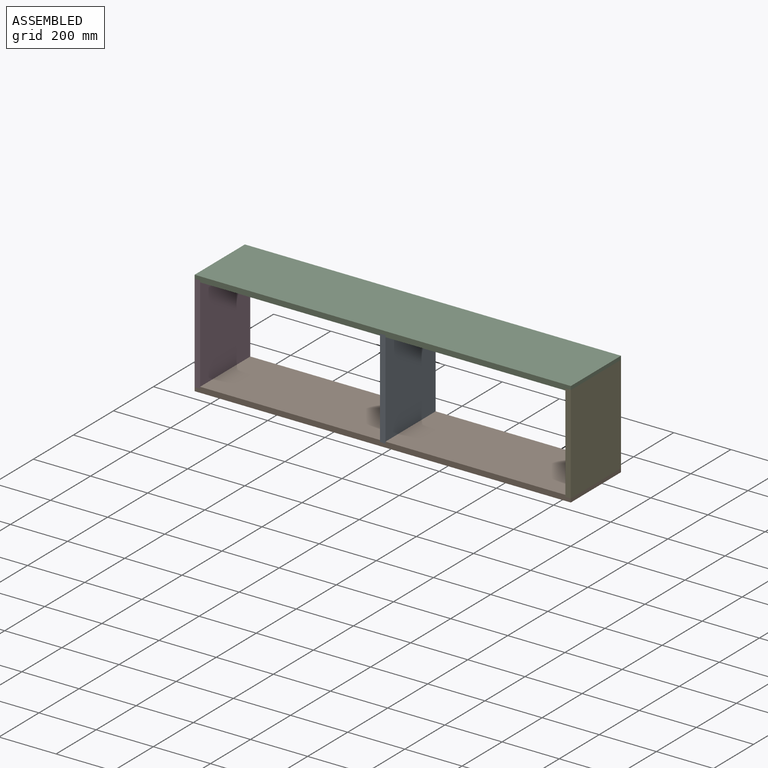
[diagram: assembled view]
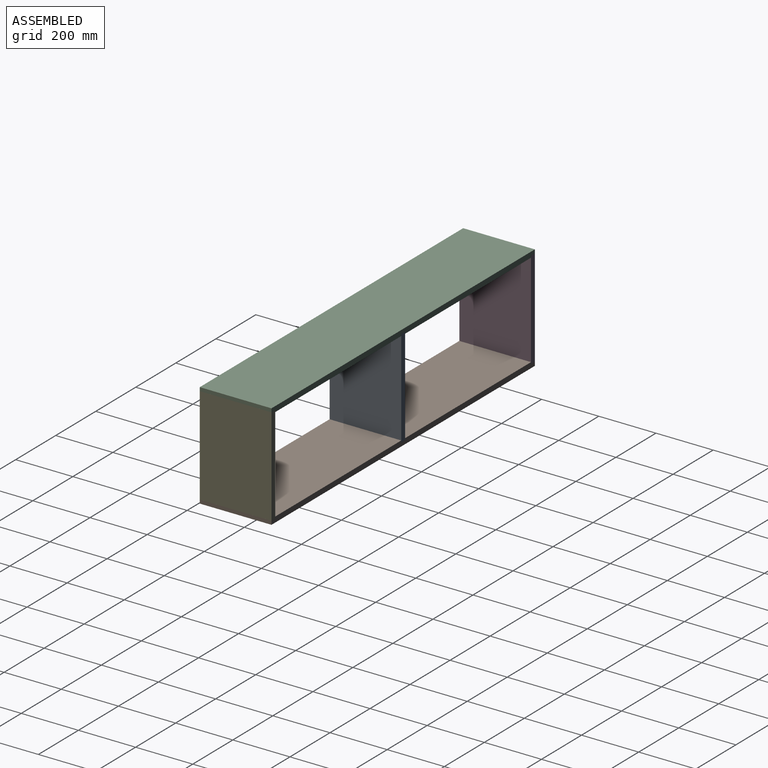
[diagram: assembled view, second angle]
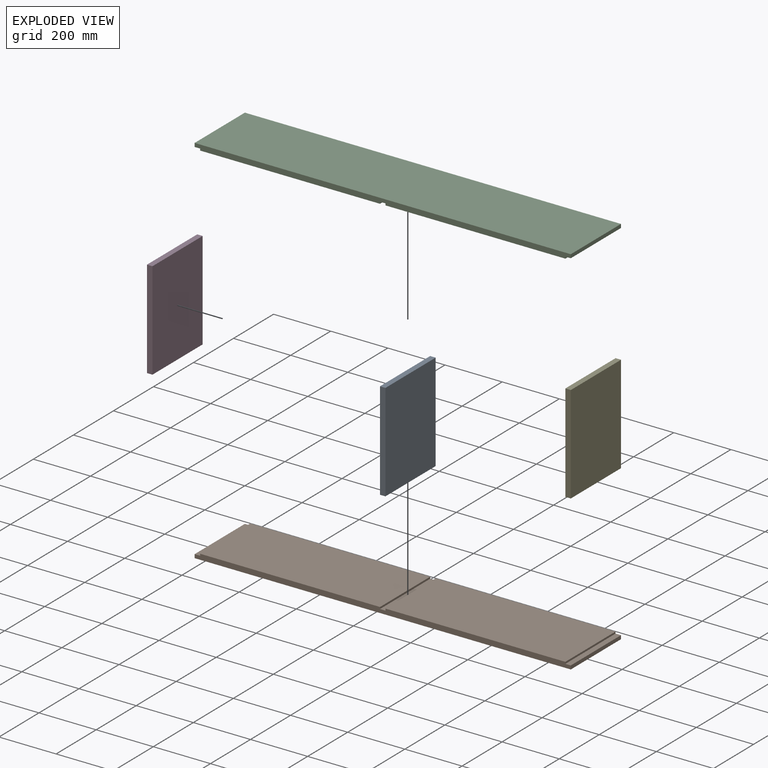
[diagram: exploded view]
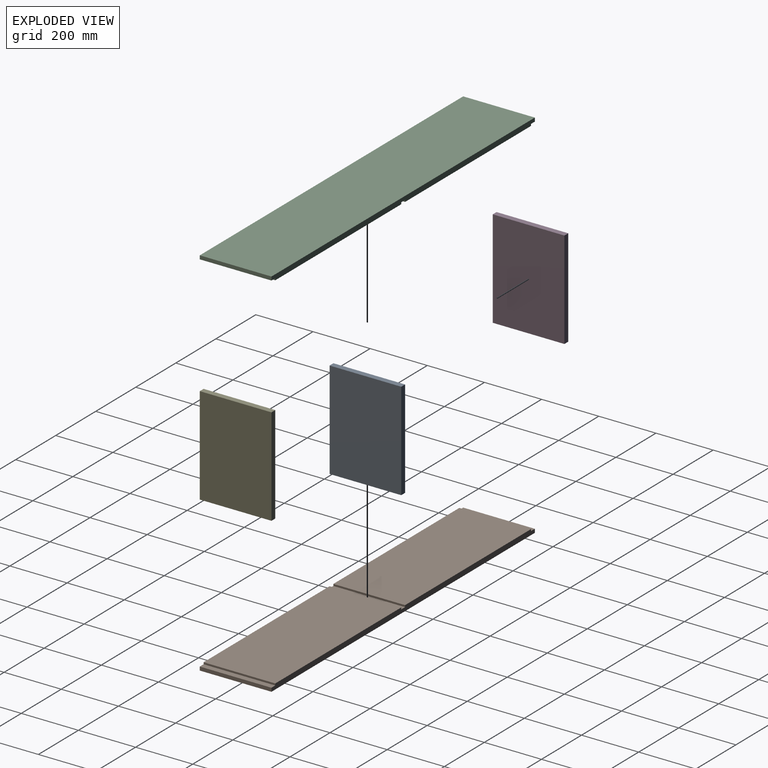
[diagram: exploded view, second angle]
ASSEMBLY  parts=5 mates=4
PART A: 6 faces, bbox 19.1x250.8x342.9 mm
  f0: plane 342.9x19.05mm, normal (0,-1,0), area 6532.2mm2, adj f1,f3,f4,f5
  f1: plane 250.83x19.05mm, normal (0,0,1), area 4778.2mm2, adj f0,f2,f3,f4
  f2: plane 342.9x19.05mm, normal (0,1,0), area 6532.2mm2, adj f1,f3,f4,f5
  f3: plane 342.9x250.83mm, normal (-1,0,0), area 86007.9mm2, adj f0,f1,f2,f5
  f4: plane 342.9x250.83mm, normal (1,0,0), area 86007.9mm2, adj f0,f1,f2,f5
  f5: plane 250.83x19.05mm, normal (0,0,-1), area 4778.2mm2, adj f0,f2,f3,f4
PART B: 14 faces, bbox 1316x250.8x19.1 mm
  f0: plane 250.83x12.7mm, normal (-1,0,0), area 3185.5mm2, adj f4,f5,f6,f10
  f1: plane 629.44x250.83mm, normal (0,0,-1), area 157880.2mm2, adj f4,f5,f9,f11
  f2: plane 629.44x250.83mm, normal (0,0,-1), area 157880.2mm2, adj f4,f5,f7,f12
  f3: plane 250.83x12.7mm, normal (1,0,0), area 3185.5mm2, adj f4,f5,f6,f13
  f4: plane 1316.04x19.05mm, normal (0,-1,0), area 24707.6mm2, adj f0,f1,f2,f3,f6,f7,f8,f9
  f5: plane 1316.04x19.05mm, normal (0,1,0), area 24707.6mm2, adj f0,f1,f2,f3,f6,f7,f8,f9
  f6: plane 1316.04x250.83mm, normal (0,0,1), area 330095.1mm2, adj f0,f3,f4,f5
  f7: plane 250.83x6.35mm, normal (-1,0,0), area 1592.7mm2, adj f2,f4,f5,f8
  f8: plane 250.83x19.05mm, normal (0,0,-1), area 4778.2mm2, adj f4,f5,f7,f9
  f9: plane 250.83x6.35mm, normal (1,0,0), area 1592.7mm2, adj f1,f4,f5,f8
  f10: plane 250.83x19.05mm, normal (0,0,-1), area 4778.2mm2, adj f0,f4,f5,f11
  f11: plane 250.83x6.35mm, normal (-1,0,0), area 1592.7mm2, adj f1,f4,f5,f10
  f12: plane 250.83x6.35mm, normal (1,0,0), area 1592.7mm2, adj f2,f4,f5,f13
  f13: plane 250.83x19.05mm, normal (0,0,-1), area 4778.2mm2, adj f3,f4,f5,f12
PART C: same geometry as B
PART D: same geometry as A
PART E: same geometry as A
PLACE A t=(-800.92,129.33,-178.82)mm
PLACE B rot(axis=(0,-1,0),180deg) t=(-152.43,129.33,151.38)mm
PLACE C t=(-152.43,129.33,-178.82)mm
PLACE D t=(-1449.42,129.33,-178.82)mm
PLACE E t=(-152.43,129.33,-178.82)mm
MATE fastened B.f13 <-> D.f5  axis (0,0,1) through (-791.4,-121.49,-185.17)mm
MATE fastened A.f1 <-> C.f8  axis (0,0,1) through (-161.95,-121.49,157.73)mm
MATE fastened E.f1 <-> C.f13  axis (0,0,1) through (486.54,-121.49,157.73)mm
MATE fastened D.f4 <-> C.f11  axis (1,0,0) through (-791.4,-121.49,157.73)mm
